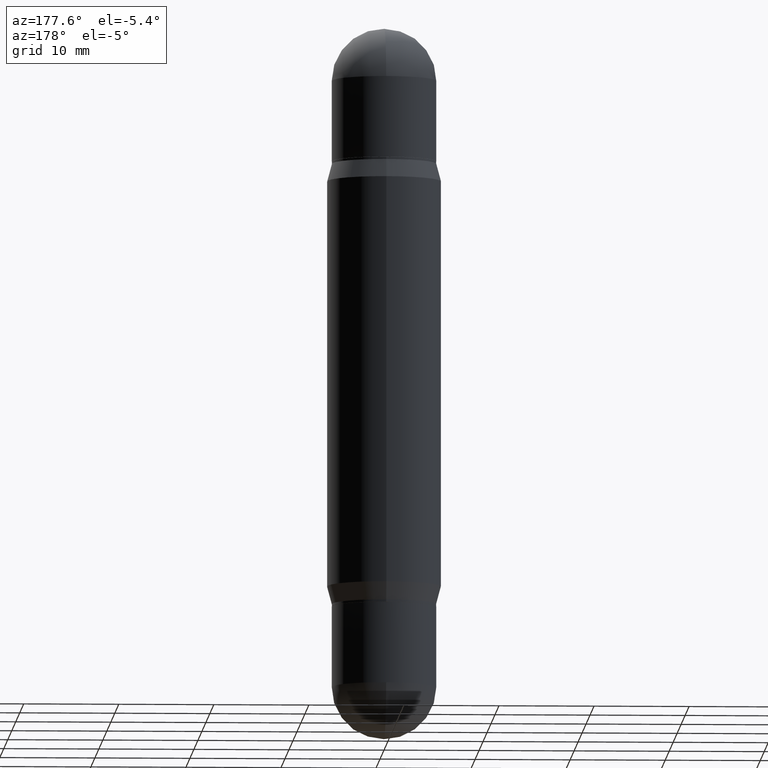
[diagram: clean part render]
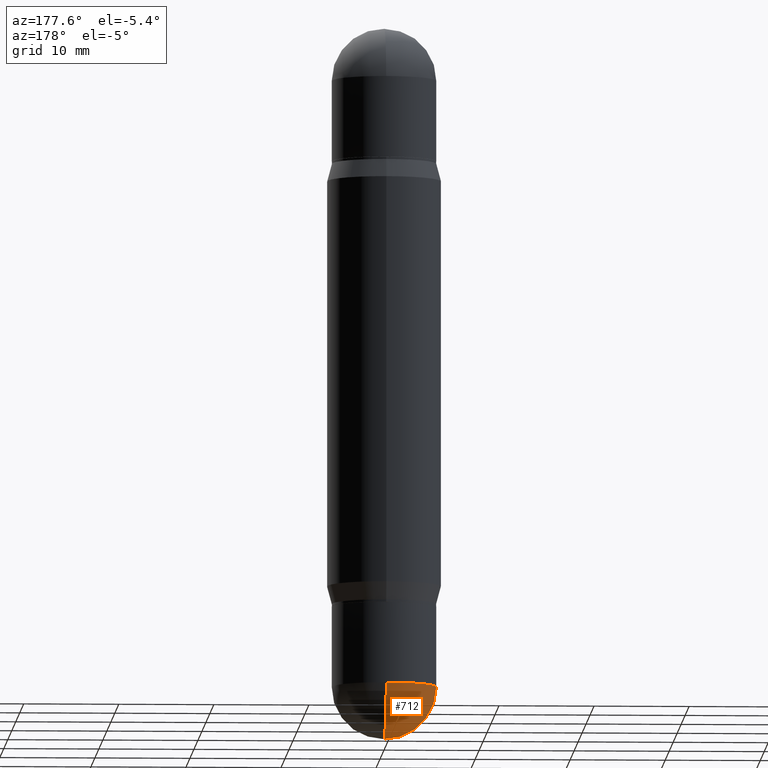
[diagram: same view with one face highlighted and labeled with its STEP entity id]
A machine part, auxiliary view. The second image highlights one B-rep face of the part: STEP entity #712.
In plain terms, the highlighted spherical surface has radius 5.5004 mm.
Its self-contained STEP definition (entity closure, byte-faithful):
#4 = VERTEX_POINT ( 'NONE', #221 ) ;
#32 = CARTESIAN_POINT ( 'NONE',  ( 1.512160567853029651E-15, 0.2165499999999906944, -2.736250000000000071 ) ) ;
#46 = ORIENTED_EDGE ( 'NONE', *, *, #162, .T. ) ;
#48 = AXIS2_PLACEMENT_3D ( 'NONE', #107, #641, #537 ) ;
#79 = EDGE_CURVE ( 'NONE', #675, #814, #1115, .T. ) ;
#84 = DIRECTION ( 'NONE',  ( 1.000000000000000000, -6.982962677686265922E-15, 4.883557194083112340E-29 ) ) ;
#87 = AXIS2_PLACEMENT_3D ( 'NONE', #127, #911, #828 ) ;
#92 = ORIENTED_EDGE ( 'NONE', *, *, #325, .F. ) ;
#94 = CARTESIAN_POINT ( 'NONE',  ( 6.691414020924079206E-29, -9.553565813409555750E-15, -2.736249999999999627 ) ) ;
#104 = CARTESIAN_POINT ( 'NONE',  ( -0.2165500000000001035, -7.430673404099130988E-15, -2.736249999999999627 ) ) ;
#107 = CARTESIAN_POINT ( 'NONE',  ( 6.713302002095624841E-29, -9.522220978585379288E-15, -2.736249999999999627 ) ) ;
#127 = CARTESIAN_POINT ( 'NONE',  ( 6.713302002095624841E-29, -9.522220978585379288E-15, -2.736249999999999627 ) ) ;
#162 = EDGE_CURVE ( 'NONE', #675, #4, #1060, .T. ) ;
#199 = AXIS2_PLACEMENT_3D ( 'NONE', #94, #542, #614 ) ;
#211 = DIRECTION ( 'NONE',  ( 1.000000000000000000, -6.982962677686270655E-15, 0.000000000000000000 ) ) ;
#221 = CARTESIAN_POINT ( 'NONE',  ( -1.538680294288431227E-15, -0.2165500000000098180, -2.736249999999999183 ) ) ;
#325 = EDGE_CURVE ( 'NONE', #1084, #4, #332, .T. ) ;
#332 = CIRCLE ( 'NONE', #511, 0.2165500000000001035 ) ;
#383 = ORIENTED_EDGE ( 'NONE', *, *, #572, .F. ) ;
#455 = AXIS2_PLACEMENT_3D ( 'NONE', #1017, #84, #953 ) ;
#472 = FACE_OUTER_BOUND ( 'NONE', #846, .T. ) ;
#511 = AXIS2_PLACEMENT_3D ( 'NONE', #556, #819, #211 ) ;
#532 = CARTESIAN_POINT ( 'NONE',  ( 7.252127585071107106E-29, -1.026504139929409708E-14, -2.952799999999999869 ) ) ;
#537 = DIRECTION ( 'NONE',  ( -7.105427357601001070E-15, -1.000000000000000000, 0.000000000000000000 ) ) ;
#542 = DIRECTION ( 'NONE',  ( -2.445468806185136597E-29, 3.491481338843145583E-15, 1.000000000000000000 ) ) ;
#556 = CARTESIAN_POINT ( 'NONE',  ( 6.691414020924079206E-29, -9.553565813409555750E-15, -2.736249999999999627 ) ) ;
#572 = EDGE_CURVE ( 'NONE', #814, #1084, #832, .T. ) ;
#604 = ORIENTED_EDGE ( 'NONE', *, *, #79, .F. ) ;
#614 = DIRECTION ( 'NONE',  ( 1.000000000000000000, -6.982962677686270655E-15, 0.000000000000000000 ) ) ;
#641 = DIRECTION ( 'NONE',  ( -1.000000000000000000, 7.105427357601001070E-15, -4.926315508542082329E-29 ) ) ;
#675 = VERTEX_POINT ( 'NONE', #532 ) ;
#712 = ADVANCED_FACE ( 'NONE', ( #472 ), #985, .T. ) ;
#814 = VERTEX_POINT ( 'NONE', #32 ) ;
#819 = DIRECTION ( 'NONE',  ( -2.445468806185136597E-29, 3.491481338843145583E-15, 1.000000000000000000 ) ) ;
#828 = DIRECTION ( 'NONE',  ( 6.982962677686265922E-15, 1.000000000000000000, -2.523064413451173785E-15 ) ) ;
#832 = CIRCLE ( 'NONE', #199, 0.2165500000000001035 ) ;
#846 = EDGE_LOOP ( 'NONE', ( #604, #46, #92, #383 ) ) ;
#911 = DIRECTION ( 'NONE',  ( -1.000000000000000000, 6.982962677686265922E-15, -4.883557194083112340E-29 ) ) ;
#953 = DIRECTION ( 'NONE',  ( 6.982962677686265922E-15, 1.000000000000000000, 0.000000000000000000 ) ) ;
#985 = SPHERICAL_SURFACE ( 'NONE', #87, 0.2165500000000003811 ) ;
#1017 = CARTESIAN_POINT ( 'NONE',  ( 6.713302002095624841E-29, -9.522220978585379288E-15, -2.736249999999999627 ) ) ;
#1060 = CIRCLE ( 'NONE', #48, 0.2165500000000003811 ) ;
#1084 = VERTEX_POINT ( 'NONE', #104 ) ;
#1115 = CIRCLE ( 'NONE', #455, 0.2165500000000003811 ) ;